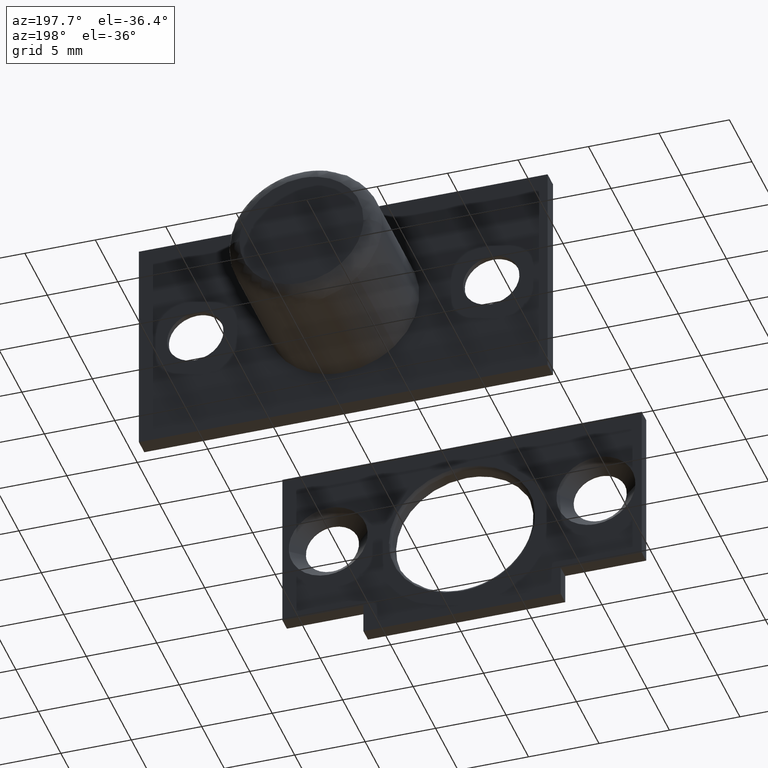
[diagram: clean part render]
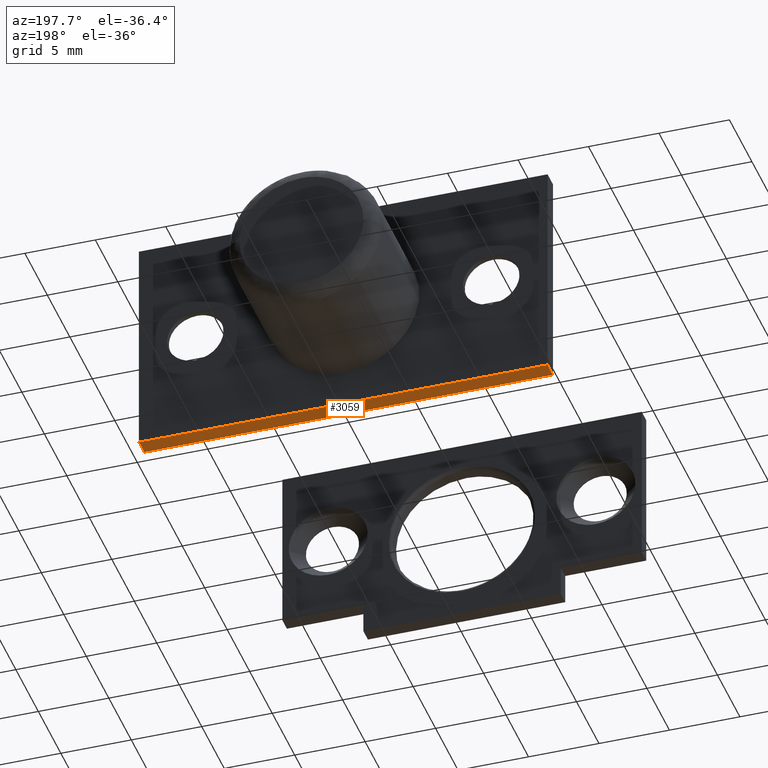
[diagram: same view with one face highlighted and labeled with its STEP entity id]
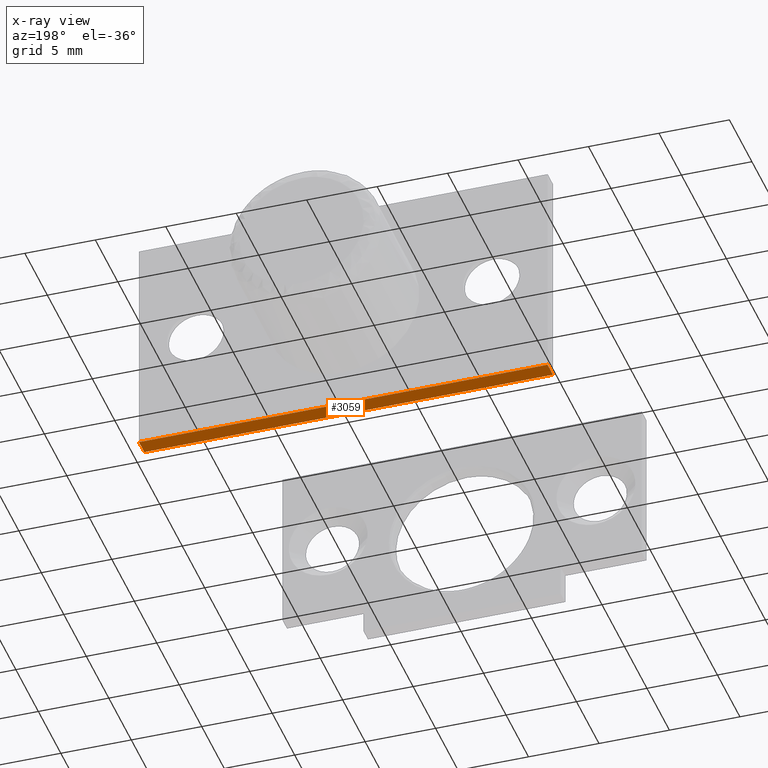
[diagram: x-ray of the same camera — body ghosted, the highlighted face saturated]
A machine part, auxiliary view. The second image highlights one B-rep face of the part: STEP entity #3059.
The next image is the same camera in x-ray: the body ghosted, the highlighted face saturated — about 0% of this face is hidden behind the body in this view.
In plain terms, the highlighted face is a freeform B-spline surface patch.
Its self-contained STEP definition (entity closure, byte-faithful):
#2955=CARTESIAN_POINT('',(-14.500000000000000,1.199997000000064,-8.0));
#2956=VERTEX_POINT('',#2955);
#2962=CARTESIAN_POINT('',(-14.500000000000000,0.0,-8.0));
#2963=VERTEX_POINT('',#2962);
#2964=CARTESIAN_POINT('',(-14.500000000000000,0.0,-8.0));
#2965=CARTESIAN_POINT('',(-14.500000000000000,1.199997000000064,-8.0));
#2966=QUASI_UNIFORM_CURVE('',1,(#2964,#2965),.UNSPECIFIED.,.F.,.U.);
#2967=EDGE_CURVE('',#2963,#2956,#2966,.T.);
#3017=CARTESIAN_POINT('',(14.500000000000000,1.199997000000064,-8.0));
#3018=VERTEX_POINT('',#3017);
#3025=CARTESIAN_POINT('',(14.500000000000000,0.0,-8.0));
#3026=VERTEX_POINT('',#3025);
#3032=CARTESIAN_POINT('',(14.500000000000000,0.0,-8.0));
#3033=CARTESIAN_POINT('',(14.500000000000000,1.199997000000064,-8.0));
#3034=QUASI_UNIFORM_CURVE('',1,(#3032,#3033),.UNSPECIFIED.,.F.,.U.);
#3035=EDGE_CURVE('',#3026,#3018,#3034,.T.);
#3040=CARTESIAN_POINT('',(-15.948549943792379,-0.059939843536944,-8.0));
#3041=CARTESIAN_POINT('',(15.948550721632991,-0.059939843536944,-8.0));
#3042=CARTESIAN_POINT('',(-15.948549943792379,1.259936789892962,-8.0));
#3043=CARTESIAN_POINT('',(15.948550721632991,1.259936789892962,-8.0));
#3044=B_SPLINE_SURFACE_WITH_KNOTS('',1,1,((#3040,#3042),(#3041,#3043)),.UNSPECIFIED.,.F.,.F.,.U.,(2,2),(2,2),(0.0,31.897100665425370),(0.041708337925747,0.958291624821350),.UNSPECIFIED.);
#3045=CARTESIAN_POINT('',(-14.500000000000000,1.199997000000064,-8.0));
#3046=CARTESIAN_POINT('',(14.500000000000000,1.199997000000064,-8.0));
#3047=QUASI_UNIFORM_CURVE('',1,(#3045,#3046),.UNSPECIFIED.,.F.,.U.);
#3048=EDGE_CURVE('',#2956,#3018,#3047,.T.);
#3049=ORIENTED_EDGE('',*,*,#3048,.T.);
#3050=ORIENTED_EDGE('',*,*,#3035,.F.);
#3051=CARTESIAN_POINT('',(-14.500000000000000,0.0,-8.0));
#3052=CARTESIAN_POINT('',(14.500000000000000,0.0,-8.0));
#3053=QUASI_UNIFORM_CURVE('',1,(#3051,#3052),.UNSPECIFIED.,.F.,.U.);
#3054=EDGE_CURVE('',#2963,#3026,#3053,.T.);
#3055=ORIENTED_EDGE('',*,*,#3054,.F.);
#3056=ORIENTED_EDGE('',*,*,#2967,.T.);
#3057=EDGE_LOOP('',(#3049,#3050,#3055,#3056));
#3058=FACE_OUTER_BOUND('',#3057,.T.);
#3059=ADVANCED_FACE('',(#3058),#3044,.F.);